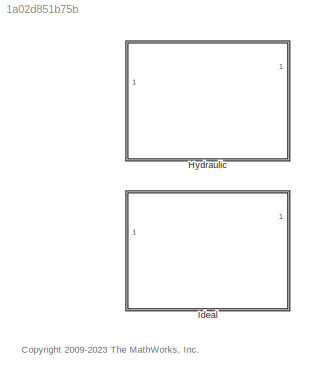
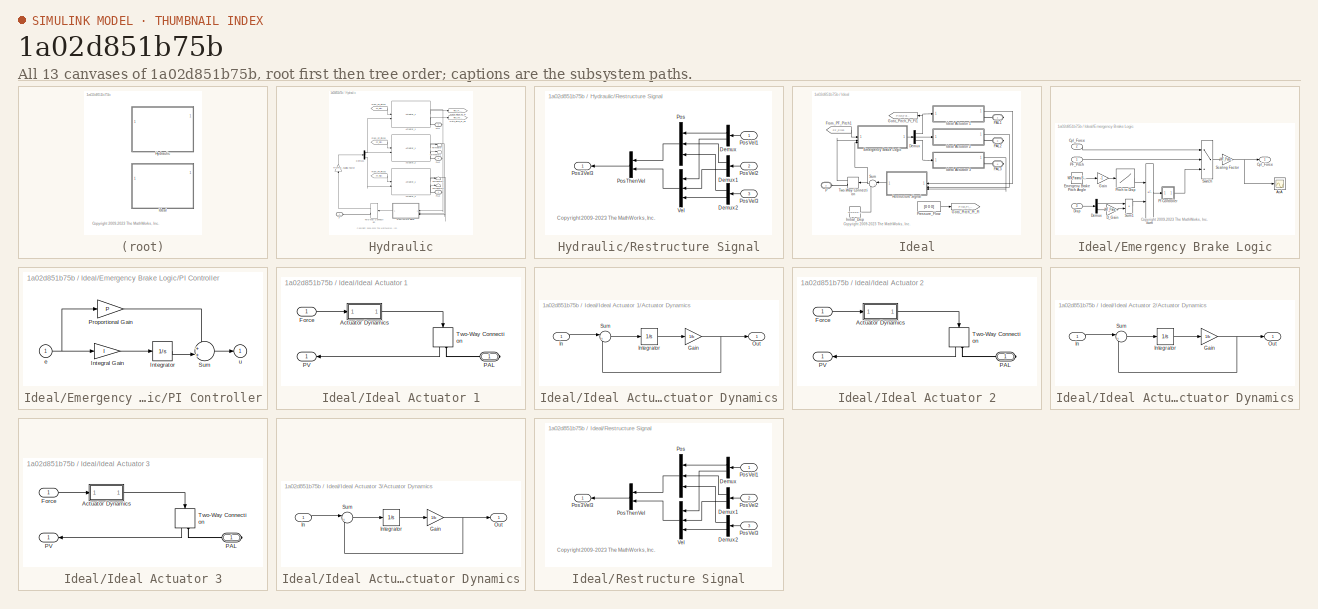
[diagram: thumbnail index - all 13 canvases of the model, root first then tree order]
MODEL slx_1a02d851b75b
KIND library
CONFIG AbsTol = auto
CONFIG EnableMultiTasking = on
CONFIG FixedStep = auto
CONFIG MaxStep = auto
CONFIG MinStep = auto
CONFIG RelTol = 1e-3
CONFIG SampleTimeConstraint = Unconstrained
CONFIG SolverName = ode45
CONFIG StartTime = 0.0
CONFIG StopTime = 10.0
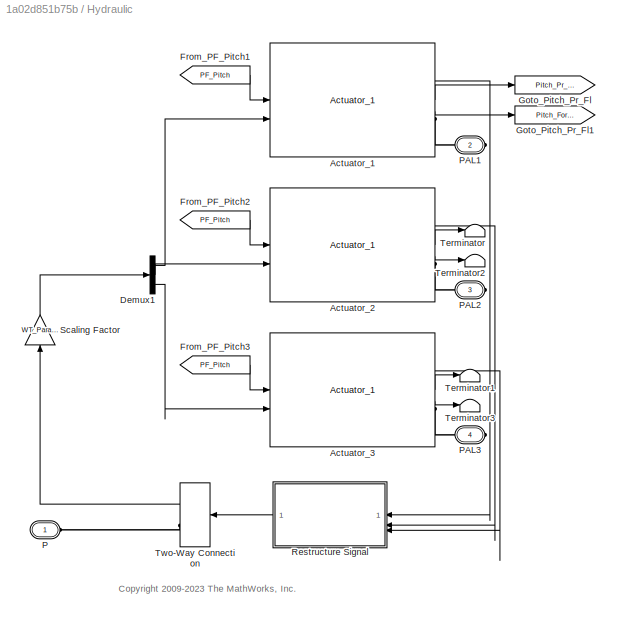
BLOCK [SubSystem] Hydraulic
BLOCK [Reference] Hydraulic/Actuator_1  REF=Hydraulic_Actuator_Lib/Actuator_1
  SourceBlock = Hydraulic_Actuator_Lib/Actuator_1
BLOCK [Reference] Hydraulic/Actuator_2  REF=Hydraulic_Actuator_Lib/Actuator_1
  SourceBlock = Hydraulic_Actuator_Lib/Actuator_1
BLOCK [Reference] Hydraulic/Actuator_3  REF=Hydraulic_Actuator_Lib/Actuator_1
  SourceBlock = Hydraulic_Actuator_Lib/Actuator_1
BLOCK [Demux] Hydraulic/Demux1
  Outputs = 3
BLOCK [From] Hydraulic/From_PF_Pitch1
  CloseFcn = tagdialog Close
  GotoTag = PF_Pitch
  TagVisibility = global
BLOCK [From] Hydraulic/From_PF_Pitch2
  CloseFcn = tagdialog Close
  GotoTag = PF_Pitch
  TagVisibility = global
BLOCK [From] Hydraulic/From_PF_Pitch3
  CloseFcn = tagdialog Close
  GotoTag = PF_Pitch
  TagVisibility = global
BLOCK [Goto] Hydraulic/Goto_Pitch_Pr_Fl
  GotoTag = Pitch_Pr_Fl
  TagVisibility = global
BLOCK [Goto] Hydraulic/Goto_Pitch_Pr_Fl1
  GotoTag = Pitch_Force
  TagVisibility = global
BLOCK [PMIOPort] Hydraulic/P
  Side = Left
  Tag = PMCPort
BLOCK [PMIOPort] Hydraulic/PAL1
  Port = 2
  Side = Right
  Tag = PMCPort
BLOCK [PMIOPort] Hydraulic/PAL2
  Port = 3
  Side = Right
  Tag = PMCPort
BLOCK [PMIOPort] Hydraulic/PAL3
  Port = 4
  Side = Right
  Tag = PMCPort
BLOCK [SubSystem] Hydraulic/Restructure Signal
BLOCK [Demux] Hydraulic/Restructure Signal/Demux
  NameLocation = top
  Outputs = 2
BLOCK [Demux] Hydraulic/Restructure Signal/Demux1
  NameLocation = top
  Outputs = 2
BLOCK [Demux] Hydraulic/Restructure Signal/Demux2
  NameLocation = top
  Outputs = 2
BLOCK [Mux] Hydraulic/Restructure Signal/Pos
  DisplayOption = bar
  Inputs = 3
  NameLocation = top
BLOCK [Outport] Hydraulic/Restructure Signal/Pos3Vel3
  VectorParamsAs1DForOutWhenUnconnected = off
BLOCK [Mux] Hydraulic/Restructure Signal/PosThenVel
  DisplayOption = bar
  Inputs = 2
  NameLocation = top
BLOCK [Inport] Hydraulic/Restructure Signal/PosVel1
BLOCK [Inport] Hydraulic/Restructure Signal/PosVel2
  Port = 2
BLOCK [Inport] Hydraulic/Restructure Signal/PosVel3
  Port = 3
BLOCK [Mux] Hydraulic/Restructure Signal/Vel
  DisplayOption = bar
  Inputs = 3
BLOCK [Gain] Hydraulic/Scaling Factor
  Gain = WT_Params.Pitch_Actuator.hydraulic_actuator_scale_factor
  NameLocation = right
BLOCK [Terminator] Hydraulic/Terminator
BLOCK [Terminator] Hydraulic/Terminator1
BLOCK [Terminator] Hydraulic/Terminator2
BLOCK [Terminator] Hydraulic/Terminator3
BLOCK [TwoWayConnection] Hydraulic/Two-Way Connection
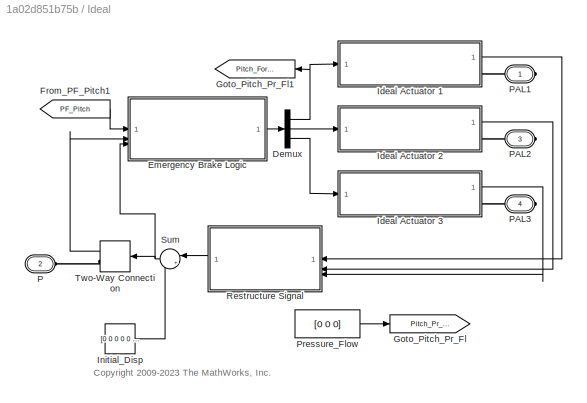
BLOCK [SubSystem] Ideal
BLOCK [Demux] Ideal/Demux
  Outputs = 3
BLOCK [SubSystem] Ideal/Emergency Brake Logic
BLOCK [Scope] Ideal/Emergency Brake Logic/AoA
  Floating = off
  NumInputPorts = 1
  ScopeSpecificationString = Simulink.scopes.TimeScopeBlockCfg('CurrentConfiguration', extmgr.ConfigurationSet(extmgr.Configuration('Core','General UI',true),extmgr.Configuration('Core','Source UI',true),extmgr.Configuration('Sources','WiredSimulink',true,'DataLoggingVariableName','ScopeData10','DataLoggingSaveFormat','StructureWithTime','DataLoggingDecimation','1','DataLoggingDecimateData',true),extmgr.Configuration('Visuals...<+1665ch>
BLOCK [Outport] Ideal/Emergency Brake Logic/Cyl_Force
  VectorParamsAs1DForOutWhenUnconnected = off
BLOCK [Inport] Ideal/Emergency Brake Logic/Cyl_Force 
  Port = 2
BLOCK [Gain] Ideal/Emergency Brake Logic/D_Gain
  Gain = WT_Params.Pitch_Controller.D_Gain
BLOCK [Demux] Ideal/Emergency Brake Logic/Demux
  Outputs = 2
BLOCK [Inport] Ideal/Emergency Brake Logic/Disp
  Port = 3
BLOCK [Constant] Ideal/Emergency Brake Logic/Emergeny Brake Pitch Angle
  Value = WT_Params.Pitch_Controller.emergency_brake_pitch_angle
BLOCK [Gain] Ideal/Emergency Brake Logic/Gain
  Gain = -1
BLOCK [Inport] Ideal/Emergency Brake Logic/PF_Pitch
BLOCK [SubSystem] Ideal/Emergency Brake Logic/PI Controller
BLOCK [Gain] Ideal/Emergency Brake Logic/PI Controller/Integral Gain
  Gain = I
  OutDataTypeStr = Inherit: Same as input
  ParamDataTypeStr = Inherit: Same as input
  SaturateOnIntegerOverflow = on
BLOCK [Integrator] Ideal/Emergency Brake Logic/PI Controller/Integrator
BLOCK [Gain] Ideal/Emergency Brake Logic/PI Controller/Proportional Gain
  Gain = P
  OutDataTypeStr = Inherit: Same as input
  ParamDataTypeStr = Inherit: Same as input
  SaturateOnIntegerOverflow = on
BLOCK [Sum] Ideal/Emergency Brake Logic/PI Controller/Sum
  InputSameDT = on
  Inputs = ++|
  OutDataTypeStr = Inherit: Same as first input
  SaturateOnIntegerOverflow = on
BLOCK [Inport] Ideal/Emergency Brake Logic/PI Controller/e
BLOCK [Outport] Ideal/Emergency Brake Logic/PI Controller/u
  InitialOutput = 0
  VectorParamsAs1DForOutWhenUnconnected = off
BLOCK [Lookup] Ideal/Emergency Brake Logic/Pitch to Disp
  InputValues = -Actuator_Lookup.angle
  SaturateOnIntegerOverflow = off
  Table = Actuator_Lookup.extension
BLOCK [Gain] Ideal/Emergency Brake Logic/Scaling Factor
  Gain = WT_Params.Pitch_Actuator.ideal_actuator_scale_factor
BLOCK [Sum] Ideal/Emergency Brake Logic/Sum
  IconShape = rectangular
  Inputs = +-
BLOCK [Sum] Ideal/Emergency Brake Logic/Sum1
  IconShape = rectangular
BLOCK [Switch] Ideal/Emergency Brake Logic/Switch
  Criteria = u2 > Threshold
  InputSameDT = off
  SaturateOnIntegerOverflow = off
BLOCK [From] Ideal/From_PF_Pitch1
  CloseFcn = tagdialog Close
  GotoTag = PF_Pitch
  TagVisibility = global
BLOCK [Goto] Ideal/Goto_Pitch_Pr_Fl
  GotoTag = Pitch_Pr_Fl
  TagVisibility = global
BLOCK [Goto] Ideal/Goto_Pitch_Pr_Fl1
  GotoTag = Pitch_Force
  NameLocation = top
  TagVisibility = global
BLOCK [SubSystem] Ideal/Ideal Actuator 1
BLOCK [SubSystem] Ideal/Ideal Actuator 1/Actuator Dynamics
BLOCK [Gain] Ideal/Ideal Actuator 1/Actuator Dynamics/Gain
  Gain = 1/b
BLOCK [Inport] Ideal/Ideal Actuator 1/Actuator Dynamics/In
BLOCK [Integrator] Ideal/Ideal Actuator 1/Actuator Dynamics/Integrator
  InitialCondition = x_initial
BLOCK [Outport] Ideal/Ideal Actuator 1/Actuator Dynamics/Out
  VectorParamsAs1DForOutWhenUnconnected = off
BLOCK [Sum] Ideal/Ideal Actuator 1/Actuator Dynamics/Sum
  InputSameDT = on
  Inputs = |+-
  OutDataTypeStr = Inherit: Same as first input
  SaturateOnIntegerOverflow = on
BLOCK [Inport] Ideal/Ideal Actuator 1/Force
BLOCK [PMIOPort] Ideal/Ideal Actuator 1/PAL
  Side = Right
BLOCK [Outport] Ideal/Ideal Actuator 1/PV
  VectorParamsAs1DForOutWhenUnconnected = off
BLOCK [TwoWayConnection] Ideal/Ideal Actuator 1/Two-Way Connection
  NameLocation = left
BLOCK [SubSystem] Ideal/Ideal Actuator 2
BLOCK [SubSystem] Ideal/Ideal Actuator 2/Actuator Dynamics
BLOCK [Gain] Ideal/Ideal Actuator 2/Actuator Dynamics/Gain
  Gain = 1/b
BLOCK [Inport] Ideal/Ideal Actuator 2/Actuator Dynamics/In
BLOCK [Integrator] Ideal/Ideal Actuator 2/Actuator Dynamics/Integrator
  InitialCondition = x_initial
BLOCK [Outport] Ideal/Ideal Actuator 2/Actuator Dynamics/Out
  VectorParamsAs1DForOutWhenUnconnected = off
BLOCK [Sum] Ideal/Ideal Actuator 2/Actuator Dynamics/Sum
  InputSameDT = on
  Inputs = |+-
  OutDataTypeStr = Inherit: Same as first input
  SaturateOnIntegerOverflow = on
BLOCK [Inport] Ideal/Ideal Actuator 2/Force
BLOCK [PMIOPort] Ideal/Ideal Actuator 2/PAL
  Side = Right
BLOCK [Outport] Ideal/Ideal Actuator 2/PV
  VectorParamsAs1DForOutWhenUnconnected = off
BLOCK [TwoWayConnection] Ideal/Ideal Actuator 2/Two-Way Connection
  NameLocation = left
BLOCK [SubSystem] Ideal/Ideal Actuator 3
BLOCK [SubSystem] Ideal/Ideal Actuator 3/Actuator Dynamics
BLOCK [Gain] Ideal/Ideal Actuator 3/Actuator Dynamics/Gain
  Gain = 1/b
BLOCK [Inport] Ideal/Ideal Actuator 3/Actuator Dynamics/In
BLOCK [Integrator] Ideal/Ideal Actuator 3/Actuator Dynamics/Integrator
  InitialCondition = x_initial
BLOCK [Outport] Ideal/Ideal Actuator 3/Actuator Dynamics/Out
  VectorParamsAs1DForOutWhenUnconnected = off
BLOCK [Sum] Ideal/Ideal Actuator 3/Actuator Dynamics/Sum
  InputSameDT = on
  Inputs = |+-
  OutDataTypeStr = Inherit: Same as first input
  SaturateOnIntegerOverflow = on
BLOCK [Inport] Ideal/Ideal Actuator 3/Force
BLOCK [PMIOPort] Ideal/Ideal Actuator 3/PAL
  Side = Right
BLOCK [Outport] Ideal/Ideal Actuator 3/PV
  VectorParamsAs1DForOutWhenUnconnected = off
BLOCK [TwoWayConnection] Ideal/Ideal Actuator 3/Two-Way Connection
  NameLocation = left
BLOCK [Constant] Ideal/Initial_Disp
  Value = [0 0 0 0 0 0]
BLOCK [PMIOPort] Ideal/P
  Port = 2
  Side = Left
  Tag = PMCPort
BLOCK [PMIOPort] Ideal/PAL1
  Side = Right
  Tag = PMCPort
BLOCK [PMIOPort] Ideal/PAL2
  Port = 3
  Side = Right
  Tag = PMCPort
BLOCK [PMIOPort] Ideal/PAL3
  Port = 4
  Side = Right
  Tag = PMCPort
BLOCK [Constant] Ideal/Pressure_Flow
  Value = [0 0 0]
BLOCK [SubSystem] Ideal/Restructure Signal
BLOCK [Demux] Ideal/Restructure Signal/Demux
  NameLocation = top
  Outputs = 2
BLOCK [Demux] Ideal/Restructure Signal/Demux1
  NameLocation = top
  Outputs = 2
BLOCK [Demux] Ideal/Restructure Signal/Demux2
  NameLocation = top
  Outputs = 2
BLOCK [Mux] Ideal/Restructure Signal/Pos
  DisplayOption = bar
  Inputs = 3
  NameLocation = top
BLOCK [Outport] Ideal/Restructure Signal/Pos3Vel3
  VectorParamsAs1DForOutWhenUnconnected = off
BLOCK [Mux] Ideal/Restructure Signal/PosThenVel
  DisplayOption = bar
  Inputs = 2
  NameLocation = top
BLOCK [Inport] Ideal/Restructure Signal/PosVel1
BLOCK [Inport] Ideal/Restructure Signal/PosVel2
  Port = 2
BLOCK [Inport] Ideal/Restructure Signal/PosVel3
  Port = 3
BLOCK [Mux] Ideal/Restructure Signal/Vel
  DisplayOption = bar
  Inputs = 3
BLOCK [Sum] Ideal/Sum
  Inputs = |++
  NameLocation = top
BLOCK [TwoWayConnection] Ideal/Two-Way Connection
ANNOTATION (root): <copyright redacted>
ANNOTATION Hydraulic: <copyright redacted>
ANNOTATION Hydraulic/Restructure Signal: <copyright redacted>
ANNOTATION Ideal: <copyright redacted>
ANNOTATION Ideal/Emergency Brake Logic: <copyright redacted>
ANNOTATION Ideal/Restructure Signal: <copyright redacted>
LINE Hydraulic/Actuator_1:1 -> Hydraulic/Restructure Signal:1
LINE Hydraulic/Actuator_1:2 -> Hydraulic/Goto_Pitch_Pr_Fl:1
LINE Hydraulic/Actuator_1:3 -> Hydraulic/Goto_Pitch_Pr_Fl1:1
LINE Hydraulic/Actuator_2:1 -> Hydraulic/Restructure Signal:2
LINE Hydraulic/Actuator_2:2 -> Hydraulic/Terminator:1
LINE Hydraulic/Actuator_2:3 -> Hydraulic/Terminator2:1
LINE Hydraulic/Actuator_3:1 -> Hydraulic/Restructure Signal:3
LINE Hydraulic/Actuator_3:2 -> Hydraulic/Terminator1:1
LINE Hydraulic/Actuator_3:3 -> Hydraulic/Terminator3:1
LINE Hydraulic/Demux1:1 -> Hydraulic/Actuator_1:2
LINE Hydraulic/Demux1:2 -> Hydraulic/Actuator_2:2
LINE Hydraulic/Demux1:3 -> Hydraulic/Actuator_3:2
LINE Hydraulic/From_PF_Pitch1:1 -> Hydraulic/Actuator_1:1
LINE Hydraulic/From_PF_Pitch2:1 -> Hydraulic/Actuator_2:1
LINE Hydraulic/From_PF_Pitch3:1 -> Hydraulic/Actuator_3:1
LINE Hydraulic/Restructure Signal/Demux1:1 -> Hydraulic/Restructure Signal/Pos:2
LINE Hydraulic/Restructure Signal/Demux1:2 -> Hydraulic/Restructure Signal/Vel:2
LINE Hydraulic/Restructure Signal/Demux2:1 -> Hydraulic/Restructure Signal/Pos:3
LINE Hydraulic/Restructure Signal/Demux2:2 -> Hydraulic/Restructure Signal/Vel:3
LINE Hydraulic/Restructure Signal/Demux:1 -> Hydraulic/Restructure Signal/Pos:1
LINE Hydraulic/Restructure Signal/Demux:2 -> Hydraulic/Restructure Signal/Vel:1
LINE Hydraulic/Restructure Signal/Pos:1 -> Hydraulic/Restructure Signal/PosThenVel:1
LINE Hydraulic/Restructure Signal/PosThenVel:1 -> Hydraulic/Restructure Signal/Pos3Vel3:1
LINE Hydraulic/Restructure Signal/PosVel1:1 -> Hydraulic/Restructure Signal/Demux:1
LINE Hydraulic/Restructure Signal/PosVel2:1 -> Hydraulic/Restructure Signal/Demux1:1
LINE Hydraulic/Restructure Signal/PosVel3:1 -> Hydraulic/Restructure Signal/Demux2:1
LINE Hydraulic/Restructure Signal/Vel:1 -> Hydraulic/Restructure Signal/PosThenVel:2
LINE Hydraulic/Restructure Signal:1 -> Hydraulic/Two-Way Connection:1
LINE Hydraulic/Scaling Factor:1 -> Hydraulic/Demux1:1
LINE Hydraulic/Two-Way Connection:1 -> Hydraulic/Scaling Factor:1
NET Ideal/Demux:1 -> Ideal/Goto_Pitch_Pr_Fl1:1, Ideal/Ideal Actuator 1:1
LINE Ideal/Demux:2 -> Ideal/Ideal Actuator 2:1
LINE Ideal/Demux:3 -> Ideal/Ideal Actuator 3:1
LINE Ideal/Emergency Brake Logic/Cyl_Force :1 -> Ideal/Emergency Brake Logic/Switch:1
LINE Ideal/Emergency Brake Logic/D_Gain:1 -> Ideal/Emergency Brake Logic/Sum1:2
LINE Ideal/Emergency Brake Logic/Demux:1 -> Ideal/Emergency Brake Logic/Sum1:1
LINE Ideal/Emergency Brake Logic/Demux:2 -> Ideal/Emergency Brake Logic/D_Gain:1
LINE Ideal/Emergency Brake Logic/Disp:1 -> Ideal/Emergency Brake Logic/Demux:1
LINE Ideal/Emergency Brake Logic/Emergeny Brake Pitch Angle:1 -> Ideal/Emergency Brake Logic/Gain:1
LINE Ideal/Emergency Brake Logic/Gain:1 -> Ideal/Emergency Brake Logic/Pitch to Disp:1
LINE Ideal/Emergency Brake Logic/PF_Pitch:1 -> Ideal/Emergency Brake Logic/Switch:2
LINE Ideal/Emergency Brake Logic/PI Controller/Integral Gain:1 -> Ideal/Emergency Brake Logic/PI Controller/Integrator:1
LINE Ideal/Emergency Brake Logic/PI Controller/Integrator:1 -> Ideal/Emergency Brake Logic/PI Controller/Sum:2
LINE Ideal/Emergency Brake Logic/PI Controller/Proportional Gain:1 -> Ideal/Emergency Brake Logic/PI Controller/Sum:1
LINE Ideal/Emergency Brake Logic/PI Controller/Sum:1 -> Ideal/Emergency Brake Logic/PI Controller/u:1
NET Ideal/Emergency Brake Logic/PI Controller/e:1 -> Ideal/Emergency Brake Logic/PI Controller/Integral Gain:1, Ideal/Emergency Brake Logic/PI Controller/Proportional Gain:1
LINE Ideal/Emergency Brake Logic/PI Controller:1 -> Ideal/Emergency Brake Logic/Switch:3
LINE Ideal/Emergency Brake Logic/Pitch to Disp:1 -> Ideal/Emergency Brake Logic/Sum:1
NET Ideal/Emergency Brake Logic/Scaling Factor:1 -> Ideal/Emergency Brake Logic/AoA:1, Ideal/Emergency Brake Logic/Cyl_Force:1
LINE Ideal/Emergency Brake Logic/Sum1:1 -> Ideal/Emergency Brake Logic/Sum:2
LINE Ideal/Emergency Brake Logic/Sum:1 -> Ideal/Emergency Brake Logic/PI Controller:1
LINE Ideal/Emergency Brake Logic/Switch:1 -> Ideal/Emergency Brake Logic/Scaling Factor:1
LINE Ideal/Emergency Brake Logic:1 -> Ideal/Demux:1
LINE Ideal/From_PF_Pitch1:1 -> Ideal/Emergency Brake Logic:1
NET Ideal/Ideal Actuator 1/Actuator Dynamics/Gain:1 -> Ideal/Ideal Actuator 1/Actuator Dynamics/Out:1, Ideal/Ideal Actuator 1/Actuator Dynamics/Sum:2
LINE Ideal/Ideal Actuator 1/Actuator Dynamics/In:1 -> Ideal/Ideal Actuator 1/Actuator Dynamics/Sum:1
LINE Ideal/Ideal Actuator 1/Actuator Dynamics/Integrator:1 -> Ideal/Ideal Actuator 1/Actuator Dynamics/Gain:1
LINE Ideal/Ideal Actuator 1/Actuator Dynamics/Sum:1 -> Ideal/Ideal Actuator 1/Actuator Dynamics/Integrator:1
LINE Ideal/Ideal Actuator 1/Actuator Dynamics:1 -> Ideal/Ideal Actuator 1/Two-Way Connection:1
LINE Ideal/Ideal Actuator 1/Force:1 -> Ideal/Ideal Actuator 1/Actuator Dynamics:1
LINE Ideal/Ideal Actuator 1/Two-Way Connection:1 -> Ideal/Ideal Actuator 1/PV:1
LINE Ideal/Ideal Actuator 1:1 -> Ideal/Restructure Signal:1
NET Ideal/Ideal Actuator 2/Actuator Dynamics/Gain:1 -> Ideal/Ideal Actuator 2/Actuator Dynamics/Out:1, Ideal/Ideal Actuator 2/Actuator Dynamics/Sum:2
LINE Ideal/Ideal Actuator 2/Actuator Dynamics/In:1 -> Ideal/Ideal Actuator 2/Actuator Dynamics/Sum:1
LINE Ideal/Ideal Actuator 2/Actuator Dynamics/Integrator:1 -> Ideal/Ideal Actuator 2/Actuator Dynamics/Gain:1
LINE Ideal/Ideal Actuator 2/Actuator Dynamics/Sum:1 -> Ideal/Ideal Actuator 2/Actuator Dynamics/Integrator:1
LINE Ideal/Ideal Actuator 2/Actuator Dynamics:1 -> Ideal/Ideal Actuator 2/Two-Way Connection:1
LINE Ideal/Ideal Actuator 2/Force:1 -> Ideal/Ideal Actuator 2/Actuator Dynamics:1
LINE Ideal/Ideal Actuator 2/Two-Way Connection:1 -> Ideal/Ideal Actuator 2/PV:1
LINE Ideal/Ideal Actuator 2:1 -> Ideal/Restructure Signal:2
NET Ideal/Ideal Actuator 3/Actuator Dynamics/Gain:1 -> Ideal/Ideal Actuator 3/Actuator Dynamics/Out:1, Ideal/Ideal Actuator 3/Actuator Dynamics/Sum:2
LINE Ideal/Ideal Actuator 3/Actuator Dynamics/In:1 -> Ideal/Ideal Actuator 3/Actuator Dynamics/Sum:1
LINE Ideal/Ideal Actuator 3/Actuator Dynamics/Integrator:1 -> Ideal/Ideal Actuator 3/Actuator Dynamics/Gain:1
LINE Ideal/Ideal Actuator 3/Actuator Dynamics/Sum:1 -> Ideal/Ideal Actuator 3/Actuator Dynamics/Integrator:1
LINE Ideal/Ideal Actuator 3/Actuator Dynamics:1 -> Ideal/Ideal Actuator 3/Two-Way Connection:1
LINE Ideal/Ideal Actuator 3/Force:1 -> Ideal/Ideal Actuator 3/Actuator Dynamics:1
LINE Ideal/Ideal Actuator 3/Two-Way Connection:1 -> Ideal/Ideal Actuator 3/PV:1
LINE Ideal/Ideal Actuator 3:1 -> Ideal/Restructure Signal:3
LINE Ideal/Initial_Disp:1 -> Ideal/Sum:2
LINE Ideal/Pressure_Flow:1 -> Ideal/Goto_Pitch_Pr_Fl:1
LINE Ideal/Restructure Signal/Demux1:1 -> Ideal/Restructure Signal/Pos:2
LINE Ideal/Restructure Signal/Demux1:2 -> Ideal/Restructure Signal/Vel:2
LINE Ideal/Restructure Signal/Demux2:1 -> Ideal/Restructure Signal/Pos:3
LINE Ideal/Restructure Signal/Demux2:2 -> Ideal/Restructure Signal/Vel:3
LINE Ideal/Restructure Signal/Demux:1 -> Ideal/Restructure Signal/Pos:1
LINE Ideal/Restructure Signal/Demux:2 -> Ideal/Restructure Signal/Vel:1
LINE Ideal/Restructure Signal/Pos:1 -> Ideal/Restructure Signal/PosThenVel:1
LINE Ideal/Restructure Signal/PosThenVel:1 -> Ideal/Restructure Signal/Pos3Vel3:1
LINE Ideal/Restructure Signal/PosVel1:1 -> Ideal/Restructure Signal/Demux:1
LINE Ideal/Restructure Signal/PosVel2:1 -> Ideal/Restructure Signal/Demux1:1
LINE Ideal/Restructure Signal/PosVel3:1 -> Ideal/Restructure Signal/Demux2:1
LINE Ideal/Restructure Signal/Vel:1 -> Ideal/Restructure Signal/PosThenVel:2
LINE Ideal/Restructure Signal:1 -> Ideal/Sum:1
NET Ideal/Sum:1 -> Ideal/Emergency Brake Logic:3, Ideal/Two-Way Connection:1
LINE Ideal/Two-Way Connection:1 -> Ideal/Emergency Brake Logic:2
PLINE Hydraulic/Actuator_1:RConn1 -- Hydraulic/PAL1:RConn1
PLINE Hydraulic/Actuator_2:RConn1 -- Hydraulic/PAL2:RConn1
PLINE Hydraulic/Actuator_3:RConn1 -- Hydraulic/PAL3:RConn1
PLINE Hydraulic/P:RConn1 -- Hydraulic/Two-Way Connection:RConn1
PLINE Ideal/Ideal Actuator 1/PAL:RConn1 -- Ideal/Ideal Actuator 1/Two-Way Connection:RConn1
PLINE Ideal/Ideal Actuator 1:RConn1 -- Ideal/PAL1:RConn1
PLINE Ideal/Ideal Actuator 2/PAL:RConn1 -- Ideal/Ideal Actuator 2/Two-Way Connection:RConn1
PLINE Ideal/Ideal Actuator 2:RConn1 -- Ideal/PAL2:RConn1
PLINE Ideal/Ideal Actuator 3/PAL:RConn1 -- Ideal/Ideal Actuator 3/Two-Way Connection:RConn1
PLINE Ideal/Ideal Actuator 3:RConn1 -- Ideal/PAL3:RConn1
PLINE Ideal/P:RConn1 -- Ideal/Two-Way Connection:RConn1
note: NET lines group one-source signal fan-out (src -> all destinations, sorted); 1:1 wires keep LINE
